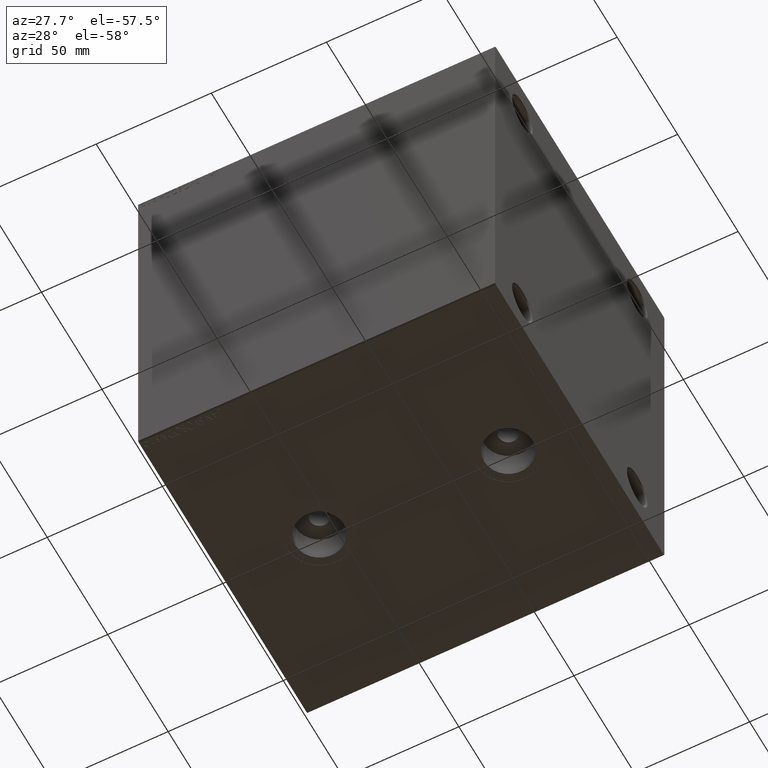
[diagram: clean part render]
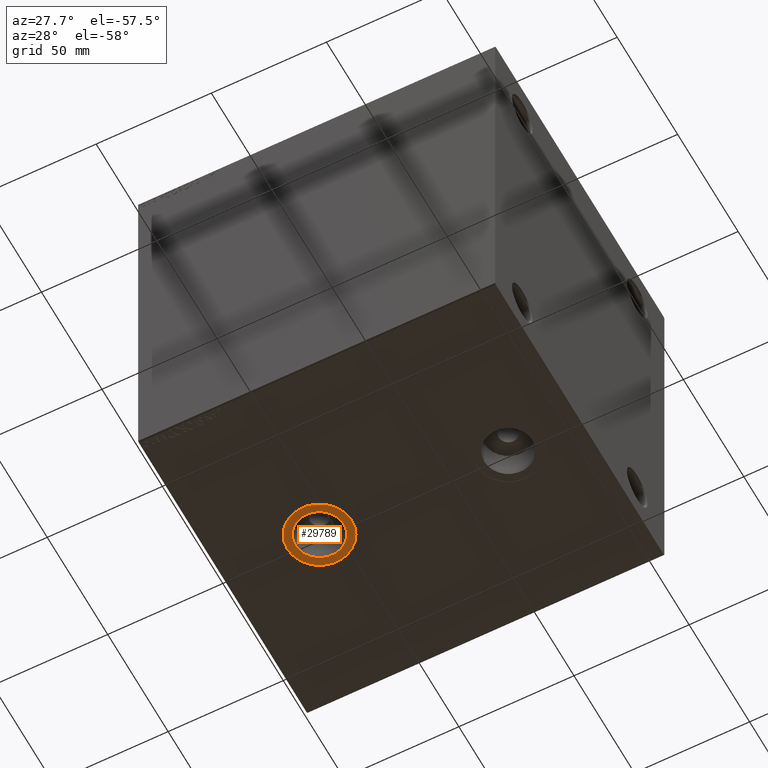
[diagram: same view with one face highlighted and labeled with its STEP entity id]
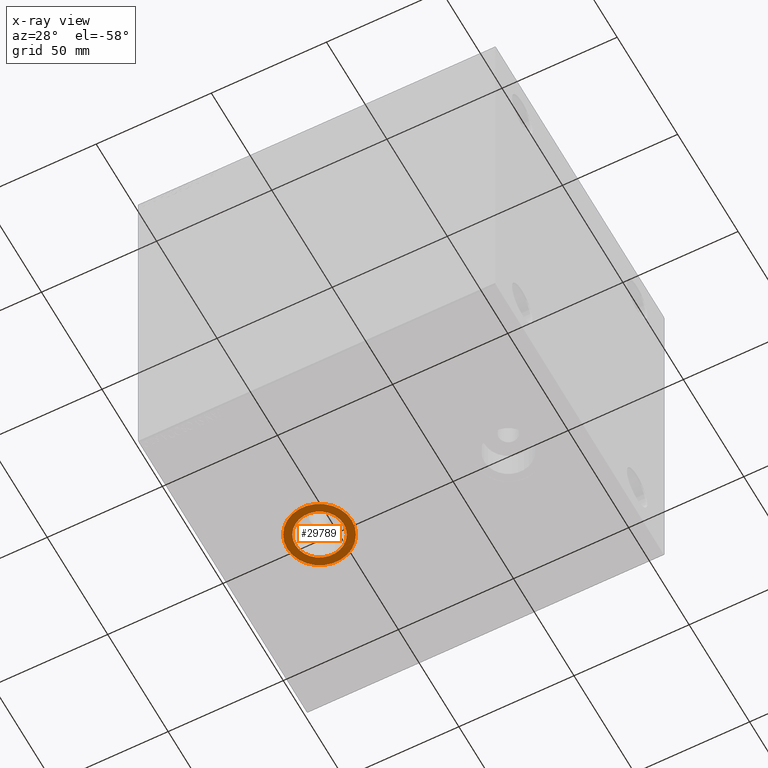
[diagram: x-ray of the same camera — body ghosted, the highlighted face saturated]
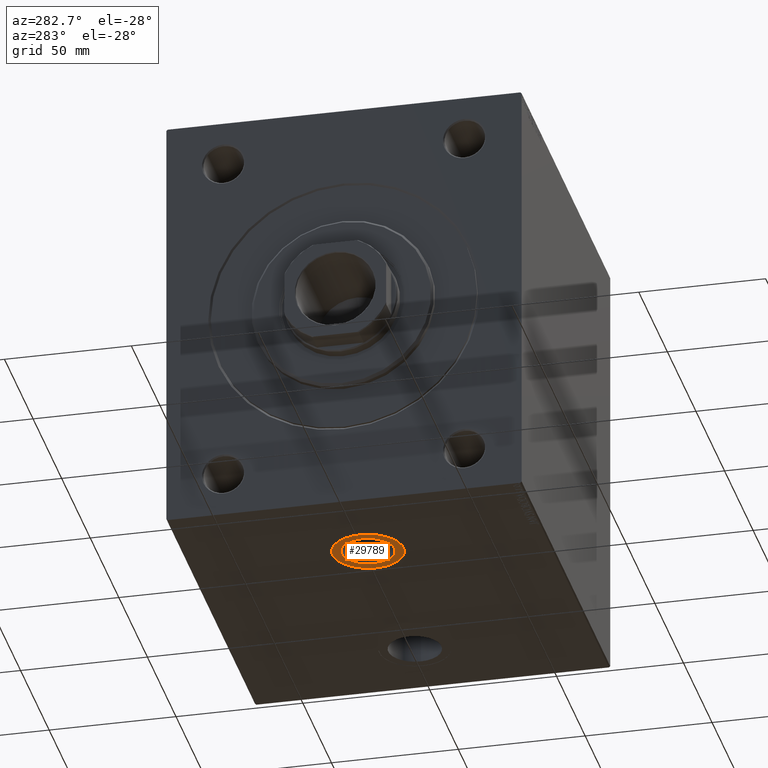
[diagram: same view with one face highlighted and labeled with its STEP entity id]
A machine part, auxiliary view. The second image highlights one B-rep face of the part: STEP entity #29789.
The next image is the same camera in x-ray: the body ghosted, the highlighted face saturated — about 0% of this face is hidden behind the body in this view.
A second angle (auxiliary view) of the same face is appended — the face is thin or edge-on in the first view.
In plain terms, the highlighted planar face has unit normal (0, 0, -1).
Its self-contained STEP definition (entity closure, byte-faithful):
#1357 = CARTESIAN_POINT ( 'NONE',  ( 42.00000000000000000, -5.359976829575725911E-15, -84.90000000000000568 ) ) ;
#1815 = CIRCLE ( 'NONE', #27645, 13.99999999999999822 ) ;
#1950 = CIRCLE ( 'NONE', #15252, 13.99999999999999822 ) ;
#2448 = DIRECTION ( 'NONE',  ( 0.000000000000000000, 0.000000000000000000, -1.000000000000000000 ) ) ;
#3022 = EDGE_CURVE ( 'NONE', #29259, #29232, #44916, .T. ) ;
#4938 = PLANE ( 'NONE',  #27960 ) ;
#5373 = EDGE_LOOP ( 'NONE', ( #15668, #11783 ) ) ;
#6680 = DIRECTION ( 'NONE',  ( 0.000000000000000000, 0.000000000000000000, -1.000000000000000000 ) ) ;
#7376 = EDGE_LOOP ( 'NONE', ( #38254, #27431 ) ) ;
#8192 = FACE_OUTER_BOUND ( 'NONE', #5373, .T. ) ;
#10287 = CARTESIAN_POINT ( 'NONE',  ( 42.00000000000000000, -5.359976829575725911E-15, -84.90000000000000568 ) ) ;
#11783 = ORIENTED_EDGE ( 'NONE', *, *, #18907, .T. ) ;
#12724 = AXIS2_PLACEMENT_3D ( 'NONE', #10287, #2448, #34783 ) ;
#13067 = EDGE_CURVE ( 'NONE', #17665, #13807, #1815, .T. ) ;
#13807 = VERTEX_POINT ( 'NONE', #39959 ) ;
#15252 = AXIS2_PLACEMENT_3D ( 'NONE', #17452, #38699, #31525 ) ;
#15668 = ORIENTED_EDGE ( 'NONE', *, *, #13067, .T. ) ;
#17452 = CARTESIAN_POINT ( 'NONE',  ( 42.00000000000000000, -5.359976829575725911E-15, -84.90000000000000568 ) ) ;
#17665 = VERTEX_POINT ( 'NONE', #41203 ) ;
#18907 = EDGE_CURVE ( 'NONE', #13807, #17665, #1950, .T. ) ;
#21691 = DIRECTION ( 'NONE',  ( -1.000000000000000000, 0.000000000000000000, 0.000000000000000000 ) ) ;
#22445 = CARTESIAN_POINT ( 'NONE',  ( 31.52000000000000668, -5.359976829575725911E-15, -84.90000000000000568 ) ) ;
#26000 = CIRCLE ( 'NONE', #12724, 10.47999999999999687 ) ;
#27431 = ORIENTED_EDGE ( 'NONE', *, *, #43401, .F. ) ;
#27645 = AXIS2_PLACEMENT_3D ( 'NONE', #1357, #32550, #43880 ) ;
#27696 = CARTESIAN_POINT ( 'NONE',  ( 42.00000000000000000, -5.359976829575725911E-15, -84.90000000000000568 ) ) ;
#27960 = AXIS2_PLACEMENT_3D ( 'NONE', #29192, #29425, #28973 ) ;
#28973 = DIRECTION ( 'NONE',  ( -1.000000000000000000, 0.000000000000000000, -0.000000000000000000 ) ) ;
#29192 = CARTESIAN_POINT ( 'NONE',  ( 0.000000000000000000, 0.000000000000000000, -84.90000000000000568 ) ) ;
#29232 = VERTEX_POINT ( 'NONE', #36750 ) ;
#29259 = VERTEX_POINT ( 'NONE', #22445 ) ;
#29425 = DIRECTION ( 'NONE',  ( 0.000000000000000000, 0.000000000000000000, -1.000000000000000000 ) ) ;
#29789 = ADVANCED_FACE ( 'NONE', ( #43775, #8192 ), #4938, .T. ) ;
#31525 = DIRECTION ( 'NONE',  ( -1.000000000000000000, 0.000000000000000000, 0.000000000000000000 ) ) ;
#32550 = DIRECTION ( 'NONE',  ( 0.000000000000000000, 0.000000000000000000, -1.000000000000000000 ) ) ;
#34783 = DIRECTION ( 'NONE',  ( -1.000000000000000000, 0.000000000000000000, 0.000000000000000000 ) ) ;
#36750 = CARTESIAN_POINT ( 'NONE',  ( 52.47999999999999687, -4.076546984069300422E-15, -84.90000000000000568 ) ) ;
#38254 = ORIENTED_EDGE ( 'NONE', *, *, #3022, .F. ) ;
#38699 = DIRECTION ( 'NONE',  ( 0.000000000000000000, 0.000000000000000000, -1.000000000000000000 ) ) ;
#39726 = AXIS2_PLACEMENT_3D ( 'NONE', #27696, #6680, #21691 ) ;
#39959 = CARTESIAN_POINT ( 'NONE',  ( 56.00000000000000711, -3.645471310769431470E-15, -84.90000000000000568 ) ) ;
#41203 = CARTESIAN_POINT ( 'NONE',  ( 28.00000000000000355, -5.359976829575725911E-15, -84.90000000000000568 ) ) ;
#43401 = EDGE_CURVE ( 'NONE', #29232, #29259, #26000, .T. ) ;
#43775 = FACE_BOUND ( 'NONE', #7376, .T. ) ;
#43880 = DIRECTION ( 'NONE',  ( -1.000000000000000000, 0.000000000000000000, 0.000000000000000000 ) ) ;
#44916 = CIRCLE ( 'NONE', #39726, 10.47999999999999687 ) ;